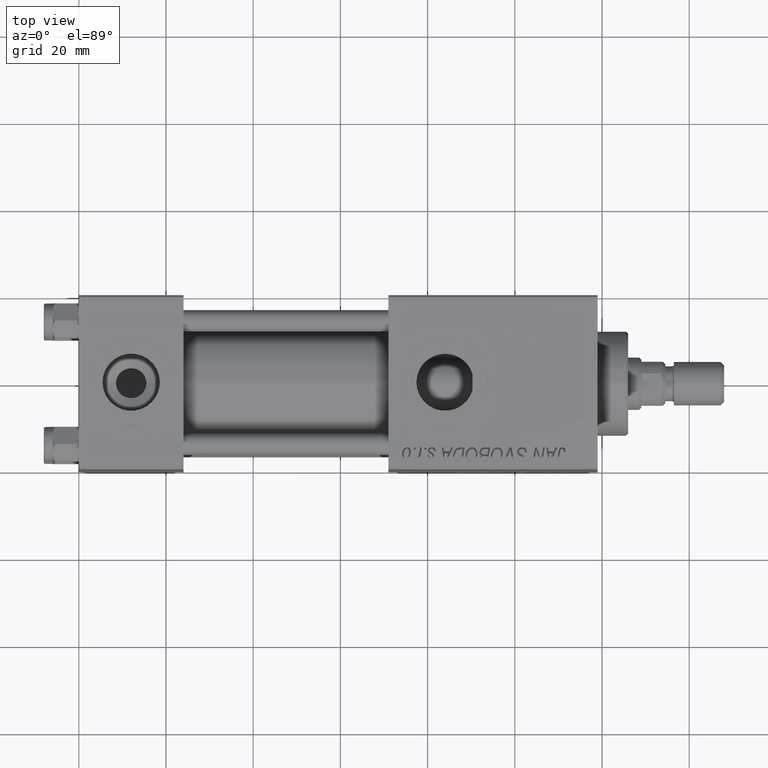
[diagram: clean part render]
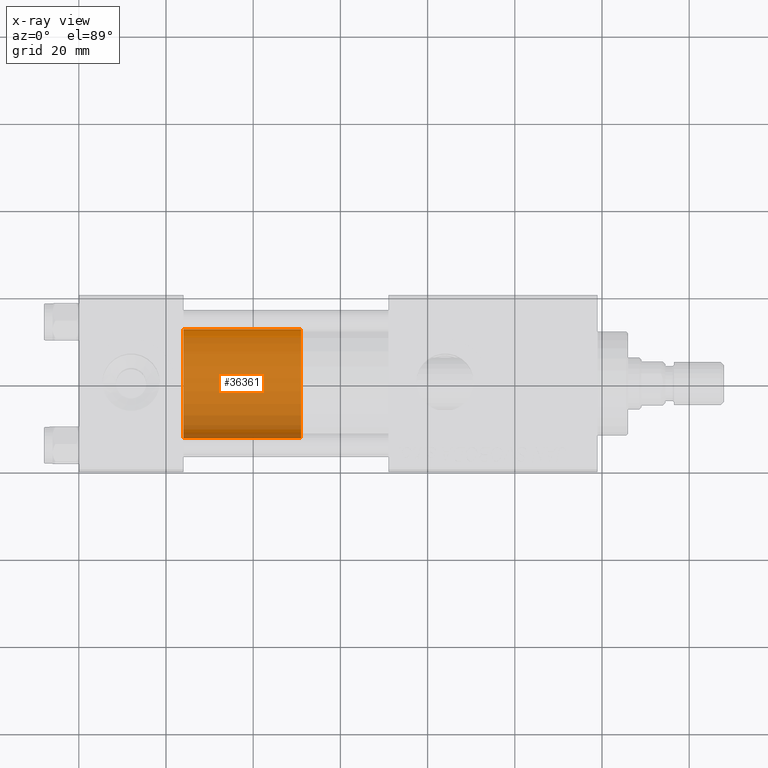
[diagram: x-ray — body ghosted, one internal face saturated and labeled with its STEP entity id]
A machine part, top view, then the same camera in x-ray: the body is ghosted and one INTERNAL B-rep face — a face not visible from any outside direction — is saturated and labeled: STEP entity #36361.
In plain terms, the highlighted cylindrical surface (partial cylindrical patch) has radius 12.5 mm, axis along (-1, 0, 0).
Its self-contained STEP definition (entity closure, byte-faithful):
#406 = DIRECTION ( 'NONE',  ( -0.000000000000000000, -0.000000000000000000, -1.000000000000000000 ) ) ;
#775 = VERTEX_POINT ( 'NONE', #5044 ) ;
#5044 = CARTESIAN_POINT ( 'NONE',  ( -12.50000000000000000, 0.000000000000000000, 0.000000000000000000 ) ) ;
#7801 = CARTESIAN_POINT ( 'NONE',  ( 12.50000000000000000, 1.530808498934191521E-15, 0.000000000000000000 ) ) ;
#10299 = DIRECTION ( 'NONE',  ( -0.000000000000000000, -0.000000000000000000, -1.000000000000000000 ) ) ;
#12095 = CIRCLE ( 'NONE', #46081, 12.50000000000000000 ) ;
#12123 = CARTESIAN_POINT ( 'NONE',  ( 0.000000000000000000, 0.000000000000000000, 27.00000000000000000 ) ) ;
#15702 = ORIENTED_EDGE ( 'NONE', *, *, #39906, .F. ) ;
#15875 = ORIENTED_EDGE ( 'NONE', *, *, #21377, .T. ) ;
#16944 = CYLINDRICAL_SURFACE ( 'NONE', #47273, 12.50000000000000000 ) ;
#17751 = LINE ( 'NONE', #42749, #41824 ) ;
#17753 = EDGE_LOOP ( 'NONE', ( #41446, #15875, #48122, #15702 ) ) ;
#18812 = CARTESIAN_POINT ( 'NONE',  ( 0.000000000000000000, 0.000000000000000000, 0.000000000000000000 ) ) ;
#20346 = CARTESIAN_POINT ( 'NONE',  ( -12.50000000000000000, 0.000000000000000000, 27.00000000000000000 ) ) ;
#20671 = DIRECTION ( 'NONE',  ( -1.000000000000000000, 0.000000000000000000, 0.000000000000000000 ) ) ;
#21355 = EDGE_CURVE ( 'NONE', #29330, #775, #12095, .T. ) ;
#21377 = EDGE_CURVE ( 'NONE', #42240, #29330, #17751, .T. ) ;
#21564 = EDGE_CURVE ( 'NONE', #42240, #46364, #45213, .T. ) ;
#24673 = FACE_OUTER_BOUND ( 'NONE', #17753, .T. ) ;
#29330 = VERTEX_POINT ( 'NONE', #7801 ) ;
#29782 = CARTESIAN_POINT ( 'NONE',  ( -12.50000000000000000, 0.000000000000000000, 27.00000000000000000 ) ) ;
#35542 = DIRECTION ( 'NONE',  ( 0.000000000000000000, 0.000000000000000000, 1.000000000000000000 ) ) ;
#35870 = AXIS2_PLACEMENT_3D ( 'NONE', #12123, #35542, #51523 ) ;
#36349 = VECTOR ( 'NONE', #406, 1000.000000000000000 ) ;
#36361 = ADVANCED_FACE ( 'NONE', ( #24673 ), #16944, .T. ) ;
#37079 = LINE ( 'NONE', #20346, #36349 ) ;
#39906 = EDGE_CURVE ( 'NONE', #46364, #775, #37079, .T. ) ;
#40348 = DIRECTION ( 'NONE',  ( -0.000000000000000000, -0.000000000000000000, -1.000000000000000000 ) ) ;
#40888 = CARTESIAN_POINT ( 'NONE',  ( 0.000000000000000000, 0.000000000000000000, 27.00000000000000000 ) ) ;
#40979 = CARTESIAN_POINT ( 'NONE',  ( 12.50000000000000000, 1.530808498934191521E-15, 27.00000000000000000 ) ) ;
#41446 = ORIENTED_EDGE ( 'NONE', *, *, #21564, .F. ) ;
#41824 = VECTOR ( 'NONE', #10299, 1000.000000000000000 ) ;
#42219 = DIRECTION ( 'NONE',  ( 1.000000000000000000, 0.000000000000000000, 0.000000000000000000 ) ) ;
#42240 = VERTEX_POINT ( 'NONE', #40979 ) ;
#42749 = CARTESIAN_POINT ( 'NONE',  ( 12.50000000000000000, 1.530808498934191521E-15, 27.00000000000000000 ) ) ;
#45213 = CIRCLE ( 'NONE', #35870, 12.50000000000000000 ) ;
#46081 = AXIS2_PLACEMENT_3D ( 'NONE', #18812, #50467, #42219 ) ;
#46364 = VERTEX_POINT ( 'NONE', #29782 ) ;
#47273 = AXIS2_PLACEMENT_3D ( 'NONE', #40888, #40348, #20671 ) ;
#48122 = ORIENTED_EDGE ( 'NONE', *, *, #21355, .T. ) ;
#50467 = DIRECTION ( 'NONE',  ( 0.000000000000000000, 0.000000000000000000, 1.000000000000000000 ) ) ;
#51523 = DIRECTION ( 'NONE',  ( 1.000000000000000000, 0.000000000000000000, 0.000000000000000000 ) ) ;